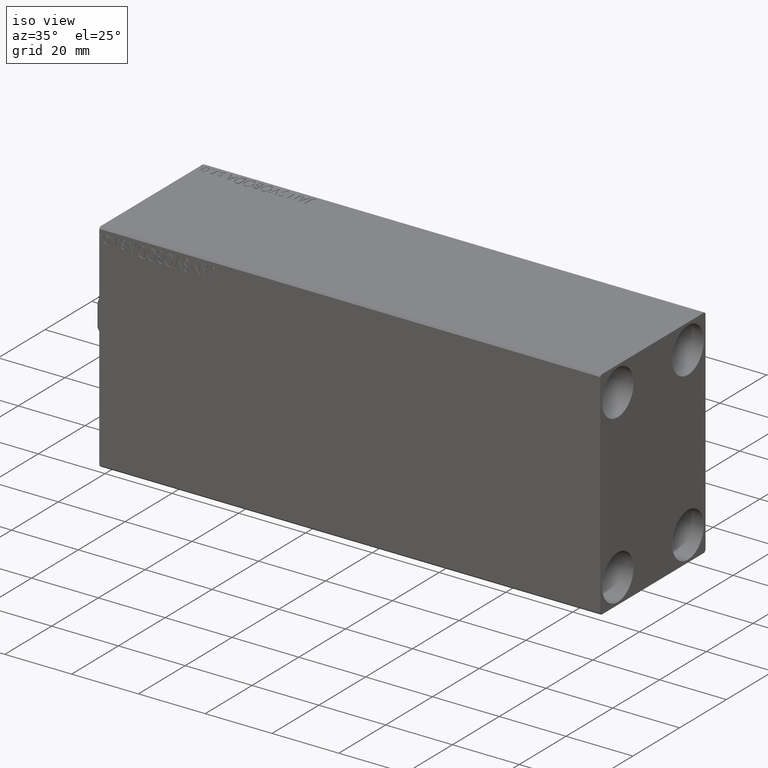
[diagram: clean part render]
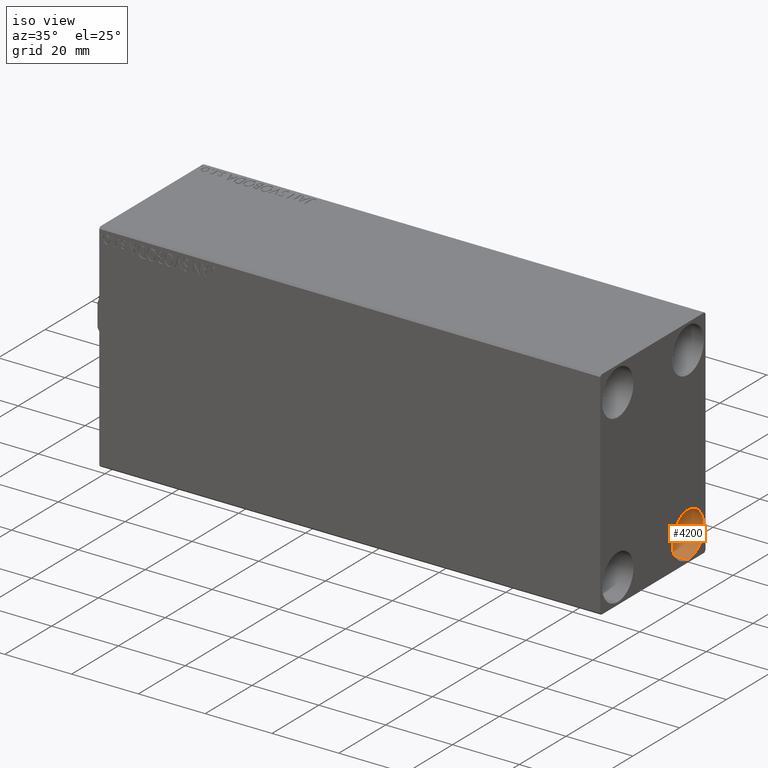
[diagram: same view with one face highlighted and labeled with its STEP entity id]
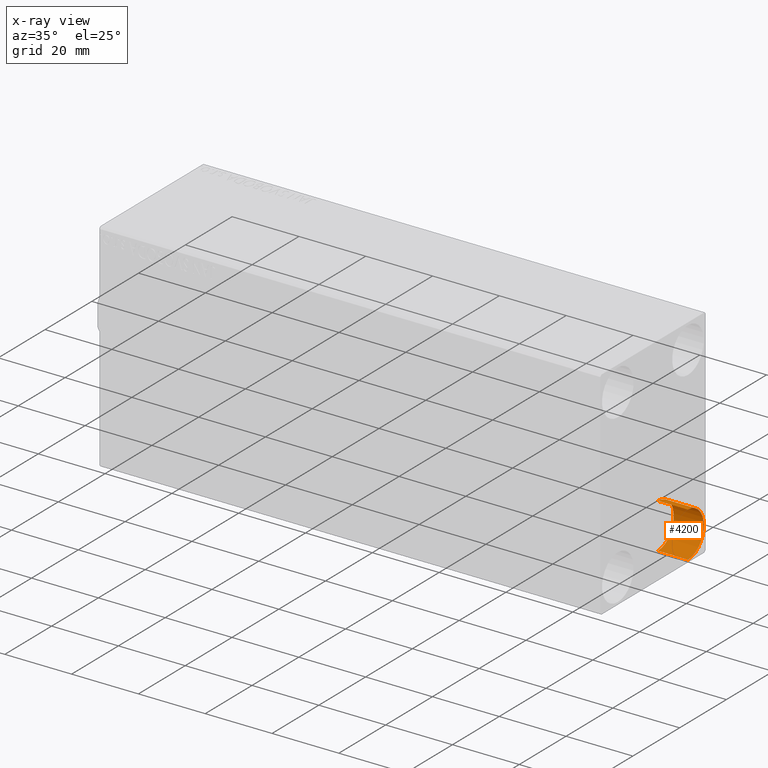
[diagram: x-ray of the same camera — body ghosted, the highlighted face saturated]
A machine part, iso view. The second image highlights one B-rep face of the part: STEP entity #4200.
The next image is the same camera in x-ray: the body ghosted, the highlighted face saturated — about 0% of this face is hidden behind the body in this view.
In plain terms, the highlighted cylindrical surface (edge-blend (fillet) strip) has radius 6.75 mm, axis along (1, 0, 0).
Its self-contained STEP definition (entity closure, byte-faithful):
#128 = CARTESIAN_POINT ( 'NONE',  ( 141.0000000000000000, 14.99999999999999645, -31.75000000000000000 ) ) ;
#751 = ORIENTED_EDGE ( 'NONE', *, *, #26413, .F. ) ;
#960 = FACE_OUTER_BOUND ( 'NONE', #41694, .T. ) ;
#1396 = CYLINDRICAL_SURFACE ( 'NONE', #31464, 6.749999999999999112 ) ;
#2086 = ORIENTED_EDGE ( 'NONE', *, *, #35150, .T. ) ;
#2945 = DIRECTION ( 'NONE',  ( 0.000000000000000000, 0.000000000000000000, 1.000000000000000000 ) ) ;
#4200 = ADVANCED_FACE ( 'NONE', ( #960 ), #1396, .F. ) ;
#5093 = CARTESIAN_POINT ( 'NONE',  ( 141.0000000000000000, 14.99999999999999645, -25.00000000000000000 ) ) ;
#5448 = VECTOR ( 'NONE', #9307, 1000.000000000000000 ) ;
#5502 = CARTESIAN_POINT ( 'NONE',  ( 150.0000000000000000, 14.99999999999999645, -18.25000000000000355 ) ) ;
#5895 = ORIENTED_EDGE ( 'NONE', *, *, #26237, .T. ) ;
#6190 = LINE ( 'NONE', #19755, #5448 ) ;
#7180 = DIRECTION ( 'NONE',  ( 0.000000000000000000, 0.000000000000000000, -1.000000000000000000 ) ) ;
#7857 = VERTEX_POINT ( 'NONE', #10286 ) ;
#9307 = DIRECTION ( 'NONE',  ( 1.000000000000000000, -0.000000000000000000, -0.000000000000000000 ) ) ;
#10286 = CARTESIAN_POINT ( 'NONE',  ( 141.0000000000000000, 14.99999999999999645, -31.75000000000000000 ) ) ;
#10485 = AXIS2_PLACEMENT_3D ( 'NONE', #26518, #36766, #2945 ) ;
#10798 = DIRECTION ( 'NONE',  ( 1.000000000000000000, -0.000000000000000000, -0.000000000000000000 ) ) ;
#13423 = VERTEX_POINT ( 'NONE', #35346 ) ;
#15097 = DIRECTION ( 'NONE',  ( -1.000000000000000000, -0.000000000000000000, -0.000000000000000000 ) ) ;
#19755 = CARTESIAN_POINT ( 'NONE',  ( 141.0000000000000000, 14.99999999999999645, -18.25000000000000355 ) ) ;
#20321 = AXIS2_PLACEMENT_3D ( 'NONE', #5093, #15097, #21776 ) ;
#21776 = DIRECTION ( 'NONE',  ( 0.000000000000000000, 0.000000000000000000, 1.000000000000000000 ) ) ;
#23283 = CIRCLE ( 'NONE', #10485, 6.749999999999999112 ) ;
#24914 = VERTEX_POINT ( 'NONE', #5502 ) ;
#26014 = CIRCLE ( 'NONE', #20321, 6.749999999999999112 ) ;
#26237 = EDGE_CURVE ( 'NONE', #13423, #7857, #26014, .T. ) ;
#26413 = EDGE_CURVE ( 'NONE', #13423, #24914, #6190, .T. ) ;
#26518 = CARTESIAN_POINT ( 'NONE',  ( 150.0000000000000000, 14.99999999999999645, -25.00000000000000000 ) ) ;
#27370 = ORIENTED_EDGE ( 'NONE', *, *, #30361, .F. ) ;
#29416 = VERTEX_POINT ( 'NONE', #37860 ) ;
#30361 = EDGE_CURVE ( 'NONE', #24914, #29416, #23283, .T. ) ;
#31464 = AXIS2_PLACEMENT_3D ( 'NONE', #34545, #34774, #7180 ) ;
#34545 = CARTESIAN_POINT ( 'NONE',  ( 141.0000000000000000, 14.99999999999999645, -25.00000000000000000 ) ) ;
#34774 = DIRECTION ( 'NONE',  ( 1.000000000000000000, -0.000000000000000000, -0.000000000000000000 ) ) ;
#35150 = EDGE_CURVE ( 'NONE', #7857, #29416, #41286, .T. ) ;
#35346 = CARTESIAN_POINT ( 'NONE',  ( 141.0000000000000000, 14.99999999999999645, -18.25000000000000355 ) ) ;
#36766 = DIRECTION ( 'NONE',  ( -1.000000000000000000, -0.000000000000000000, -0.000000000000000000 ) ) ;
#37860 = CARTESIAN_POINT ( 'NONE',  ( 150.0000000000000000, 14.99999999999999645, -31.75000000000000000 ) ) ;
#41286 = LINE ( 'NONE', #128, #44023 ) ;
#41694 = EDGE_LOOP ( 'NONE', ( #751, #5895, #2086, #27370 ) ) ;
#44023 = VECTOR ( 'NONE', #10798, 1000.000000000000000 ) ;